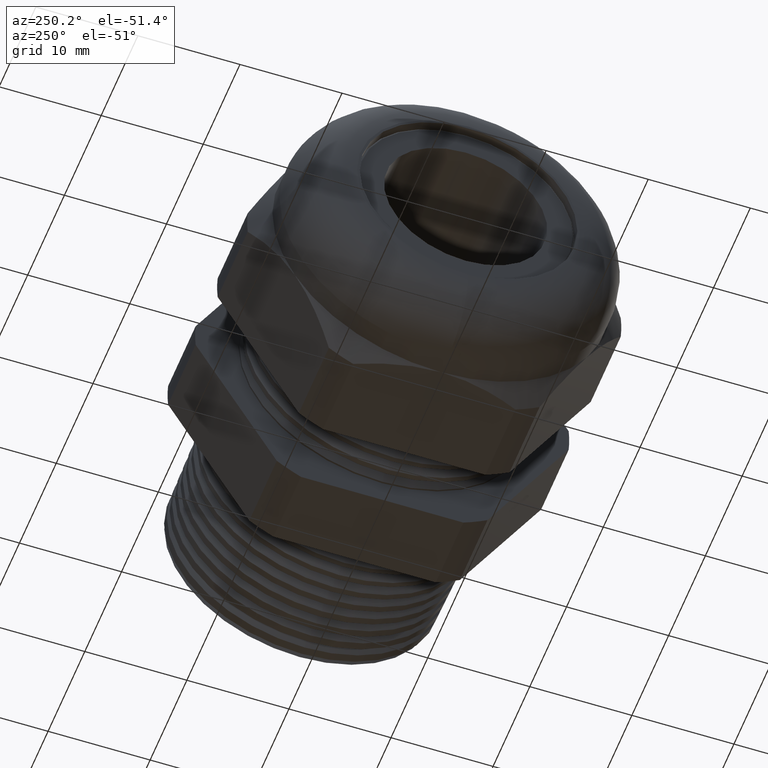
[diagram: clean part render]
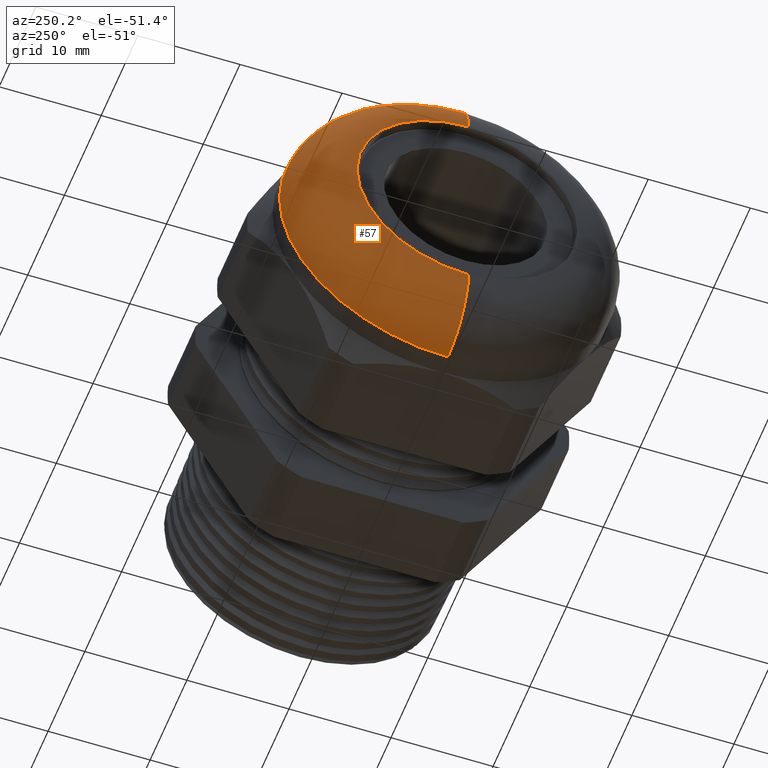
[diagram: same view with one face highlighted and labeled with its STEP entity id]
A machine part, auxiliary view. The second image highlights one B-rep face of the part: STEP entity #57.
In plain terms, the highlighted toroidal blend (fillet) surface has major radius 10.922 mm and minor (blend) radius 5.588 mm.
Its self-contained STEP definition (entity closure, byte-faithful):
#55 = EDGE_LOOP ( 'NONE', ( #56, #484, #480, #470 ) ) ;
#56 = ORIENTED_EDGE ( 'NONE', *, *, #72, .F. ) ;
#57 = ADVANCED_FACE ( 'NONE', ( #1325 ), #1324, .T. ) ;
#72 = EDGE_CURVE ( 'NONE', #73, #482, #1352, .T. ) ;
#73 = VERTEX_POINT ( 'NONE', #1347 ) ;
#469 = EDGE_CURVE ( 'NONE', #482, #477, #2142, .T. ) ;
#470 = ORIENTED_EDGE ( 'NONE', *, *, #469, .F. ) ;
#477 = VERTEX_POINT ( 'NONE', #2125 ) ;
#479 = EDGE_CURVE ( 'NONE', #477, #481, #2182, .T. ) ;
#480 = ORIENTED_EDGE ( 'NONE', *, *, #479, .F. ) ;
#481 = VERTEX_POINT ( 'NONE', #2177 ) ;
#482 = VERTEX_POINT ( 'NONE', #2176 ) ;
#483 = EDGE_CURVE ( 'NONE', #73, #481, #2175, .T. ) ;
#484 = ORIENTED_EDGE ( 'NONE', *, *, #483, .T. ) ;
#1319 = DIRECTION ( 'NONE',  ( 0.0000000000000000000, 0.0000000000000000000, 1.000000000000000000 ) ) ;
#1320 = DIRECTION ( 'NONE',  ( -1.000000000000000000, 0.0000000000000000000, 0.0000000000000000000 ) ) ;
#1321 = CARTESIAN_POINT ( 'NONE',  ( -1.310000000000000100, 0.0000000000000000000, 0.0000000000000000000 ) ) ;
#1322 = AXIS2_PLACEMENT_3D ( 'NONE', #1321, #1320, #1319 ) ;
#1324 = TOROIDAL_SURFACE ( 'NONE', #1322, 0.4300000000000002200, 0.2200000000000000000 ) ;
#1325 = FACE_OUTER_BOUND ( 'NONE', #55, .T. ) ;
#1347 = CARTESIAN_POINT ( 'NONE',  ( -1.310000000000000100, 0.0000000000000000000, -0.6500000000000001300 ) ) ;
#1348 = DIRECTION ( 'NONE',  ( 0.0000000000000000000, 0.0000000000000000000, 1.000000000000000000 ) ) ;
#1349 = DIRECTION ( 'NONE',  ( 1.000000000000000000, 0.0000000000000000000, 0.0000000000000000000 ) ) ;
#1350 = CARTESIAN_POINT ( 'NONE',  ( -1.310000000000000100, 0.0000000000000000000, 0.0000000000000000000 ) ) ;
#1351 = AXIS2_PLACEMENT_3D ( 'NONE', #1350, #1349, #1348 ) ;
#1352 = CIRCLE ( 'NONE', #1351, 0.6500000000000001300 ) ;
#2125 = CARTESIAN_POINT ( 'NONE',  ( -1.530000000000000000, 0.0000000000000000000, 0.4300000000000002200 ) ) ;
#2138 = DIRECTION ( 'NONE',  ( 0.0000000000000000000, 0.0000000000000000000, -1.000000000000000000 ) ) ;
#2139 = DIRECTION ( 'NONE',  ( 0.0000000000000000000, -1.000000000000000000, 0.0000000000000000000 ) ) ;
#2140 = CARTESIAN_POINT ( 'NONE',  ( -1.310000000000000100, 0.0000000000000000000, 0.4300000000000002200 ) ) ;
#2141 = AXIS2_PLACEMENT_3D ( 'NONE', #2140, #2139, #2138 ) ;
#2142 = CIRCLE ( 'NONE', #2141, 0.2200000000000000000 ) ;
#2171 = DIRECTION ( 'NONE',  ( 0.0000000000000000000, -1.224646799147353200E-016, 1.000000000000000000 ) ) ;
#2172 = DIRECTION ( 'NONE',  ( 0.0000000000000000000, 1.000000000000000000, 1.224646799147353200E-016 ) ) ;
#2173 = CARTESIAN_POINT ( 'NONE',  ( -1.310000000000000100, 5.265981236333621300E-017, -0.4300000000000002200 ) ) ;
#2174 = AXIS2_PLACEMENT_3D ( 'NONE', #2173, #2172, #2171 ) ;
#2175 = CIRCLE ( 'NONE', #2174, 0.2200000000000000000 ) ;
#2176 = CARTESIAN_POINT ( 'NONE',  ( -1.310000000000000100, 7.960204194457797900E-017, 0.6500000000000001300 ) ) ;
#2177 = CARTESIAN_POINT ( 'NONE',  ( -1.530000000000000000, 6.613092715395709900E-017, -0.4300000000000002200 ) ) ;
#2178 = DIRECTION ( 'NONE',  ( 0.0000000000000000000, 0.0000000000000000000, 1.000000000000000000 ) ) ;
#2179 = DIRECTION ( 'NONE',  ( -1.000000000000000000, 0.0000000000000000000, 0.0000000000000000000 ) ) ;
#2180 = CARTESIAN_POINT ( 'NONE',  ( -1.530000000000000000, 0.0000000000000000000, 0.0000000000000000000 ) ) ;
#2181 = AXIS2_PLACEMENT_3D ( 'NONE', #2180, #2179, #2178 ) ;
#2182 = CIRCLE ( 'NONE', #2181, 0.4300000000000002200 ) ;